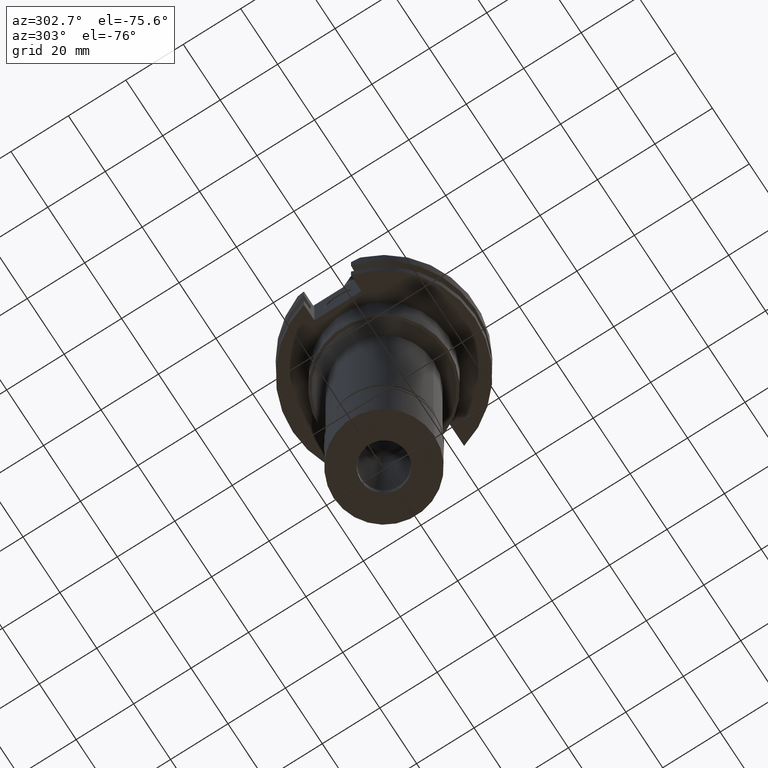
[diagram: clean part render]
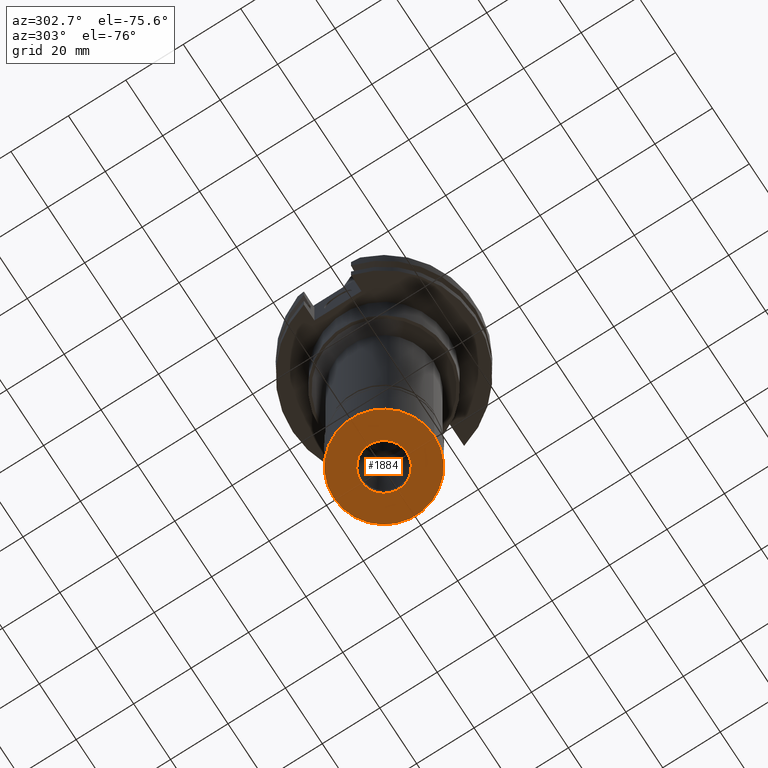
[diagram: same view with one face highlighted and labeled with its STEP entity id]
A machine part, auxiliary view. The second image highlights one B-rep face of the part: STEP entity #1884.
In plain terms, the highlighted planar face has unit normal (0, 0, -1).
Its self-contained STEP definition (entity closure, byte-faithful):
#17 = ORIENTED_EDGE ( 'NONE', *, *, #2397, .F. ) ;
#146 = AXIS2_PLACEMENT_3D ( 'NONE', #483, #2482, #2444 ) ;
#151 = CIRCLE ( 'NONE', #2022, 17.50000000000000000 ) ;
#197 = AXIS2_PLACEMENT_3D ( 'NONE', #1235, #3052, #1036 ) ;
#198 = CARTESIAN_POINT ( 'NONE',  ( 0.0000000000000000000, 0.0000000000000000000, -26.70000000000000284 ) ) ;
#200 = DIRECTION ( 'NONE',  ( 0.0000000000000000000, -1.000000000000000000, 0.0000000000000000000 ) ) ;
#337 = EDGE_CURVE ( 'NONE', #3156, #2711, #2928, .T. ) ;
#355 = VERTEX_POINT ( 'NONE', #2058 ) ;
#371 = AXIS2_PLACEMENT_3D ( 'NONE', #198, #1926, #460 ) ;
#429 = CIRCLE ( 'NONE', #371, 8.000000000000000000 ) ;
#460 = DIRECTION ( 'NONE',  ( 0.0000000000000000000, 1.000000000000000000, 0.0000000000000000000 ) ) ;
#483 = CARTESIAN_POINT ( 'NONE',  ( 0.0000000000000000000, 0.0000000000000000000, -26.70000000000000284 ) ) ;
#623 = DIRECTION ( 'NONE',  ( 0.0000000000000000000, 0.0000000000000000000, 1.000000000000000000 ) ) ;
#682 = AXIS2_PLACEMENT_3D ( 'NONE', #3026, #1439, #200 ) ;
#1036 = DIRECTION ( 'NONE',  ( 0.0000000000000000000, 1.000000000000000000, 0.0000000000000000000 ) ) ;
#1083 = ORIENTED_EDGE ( 'NONE', *, *, #1918, .F. ) ;
#1172 = FACE_BOUND ( 'NONE', #3273, .T. ) ;
#1202 = EDGE_LOOP ( 'NONE', ( #1634, #1526 ) ) ;
#1235 = CARTESIAN_POINT ( 'NONE',  ( 0.0000000000000000000, 0.0000000000000000000, -26.70000000000000284 ) ) ;
#1439 = DIRECTION ( 'NONE',  ( 0.0000000000000000000, 0.0000000000000000000, -1.000000000000000000 ) ) ;
#1526 = ORIENTED_EDGE ( 'NONE', *, *, #1665, .F. ) ;
#1558 = CARTESIAN_POINT ( 'NONE',  ( 0.0000000000000000000, 0.0000000000000000000, -26.70000000000000284 ) ) ;
#1634 = ORIENTED_EDGE ( 'NONE', *, *, #337, .F. ) ;
#1665 = EDGE_CURVE ( 'NONE', #2711, #3156, #151, .T. ) ;
#1884 = ADVANCED_FACE ( 'NONE', ( #3259, #1172 ), #3010, .T. ) ;
#1918 = EDGE_CURVE ( 'NONE', #2615, #355, #2778, .T. ) ;
#1926 = DIRECTION ( 'NONE',  ( 0.0000000000000000000, 0.0000000000000000000, -1.000000000000000000 ) ) ;
#2022 = AXIS2_PLACEMENT_3D ( 'NONE', #1558, #623, #2942 ) ;
#2058 = CARTESIAN_POINT ( 'NONE',  ( 0.0000000000000000000, 8.000000000000000000, -26.70000000000000284 ) ) ;
#2397 = EDGE_CURVE ( 'NONE', #355, #2615, #429, .T. ) ;
#2444 = DIRECTION ( 'NONE',  ( 0.0000000000000000000, -1.000000000000000000, 0.0000000000000000000 ) ) ;
#2482 = DIRECTION ( 'NONE',  ( 0.0000000000000000000, 0.0000000000000000000, -1.000000000000000000 ) ) ;
#2543 = CARTESIAN_POINT ( 'NONE',  ( 0.0000000000000000000, -8.000000000000000000, -26.70000000000000284 ) ) ;
#2607 = CARTESIAN_POINT ( 'NONE',  ( 0.0000000000000000000, -17.50000000000000000, -26.70000000000000284 ) ) ;
#2615 = VERTEX_POINT ( 'NONE', #2543 ) ;
#2711 = VERTEX_POINT ( 'NONE', #2607 ) ;
#2778 = CIRCLE ( 'NONE', #146, 8.000000000000000000 ) ;
#2785 = CARTESIAN_POINT ( 'NONE',  ( 0.0000000000000000000, 17.50000000000000000, -26.70000000000000284 ) ) ;
#2928 = CIRCLE ( 'NONE', #197, 17.50000000000000000 ) ;
#2942 = DIRECTION ( 'NONE',  ( 0.0000000000000000000, -1.000000000000000000, 0.0000000000000000000 ) ) ;
#3010 = PLANE ( 'NONE',  #682 ) ;
#3026 = CARTESIAN_POINT ( 'NONE',  ( 0.0000000000000000000, 0.0000000000000000000, -26.70000000000000284 ) ) ;
#3052 = DIRECTION ( 'NONE',  ( 0.0000000000000000000, 0.0000000000000000000, 1.000000000000000000 ) ) ;
#3156 = VERTEX_POINT ( 'NONE', #2785 ) ;
#3259 = FACE_OUTER_BOUND ( 'NONE', #1202, .T. ) ;
#3273 = EDGE_LOOP ( 'NONE', ( #17, #1083 ) ) ;